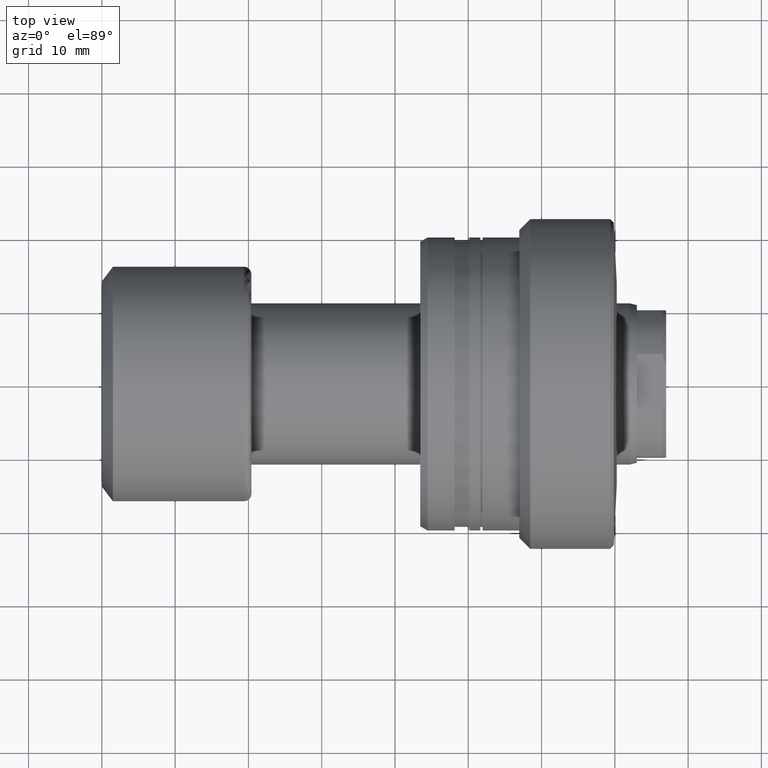
[diagram: clean part render]
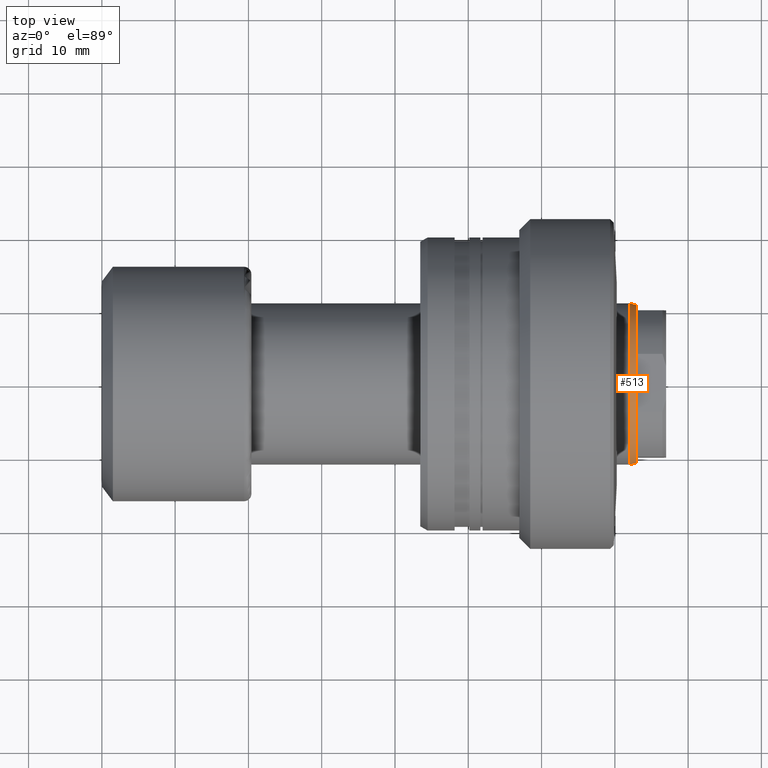
[diagram: same view with one face highlighted and labeled with its STEP entity id]
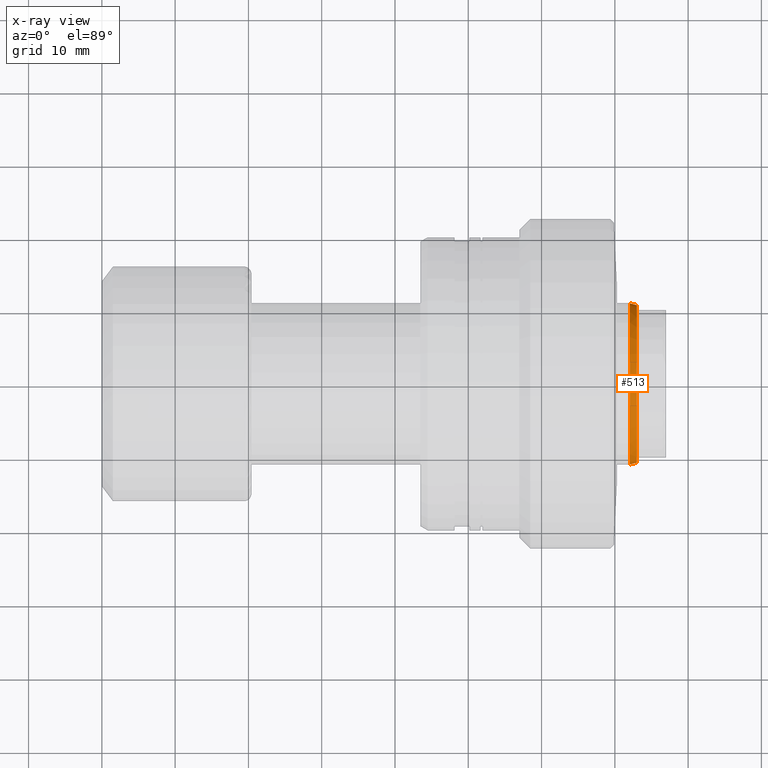
[diagram: x-ray of the same camera — body ghosted, the highlighted face saturated]
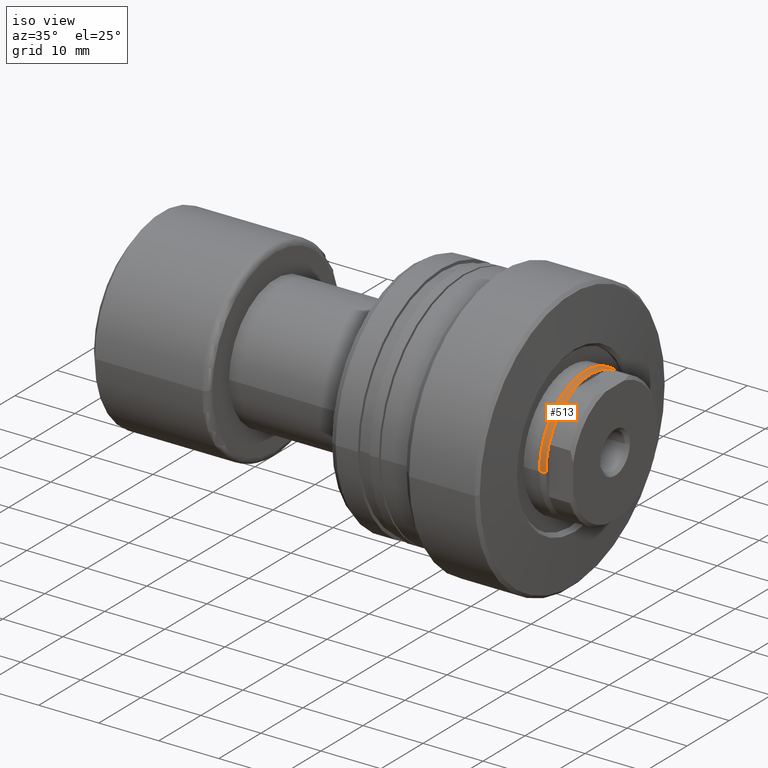
[diagram: same view with one face highlighted and labeled with its STEP entity id]
A machine part, top view. The second image highlights one B-rep face of the part: STEP entity #513.
The next image is the same camera in x-ray: the body ghosted, the highlighted face saturated — about 0% of this face is hidden behind the body in this view.
A second angle (iso view) of the same face is appended — the face is thin or edge-on in the first view.
In plain terms, the highlighted conical surface has half-angle 14.996 deg.
Its self-contained STEP definition (entity closure, byte-faithful):
#58 = CONICAL_SURFACE ( 'NONE', #299, 11.00000000000018829, 0.2617378310289950050 ) ;
#63 = ORIENTED_EDGE ( 'NONE', *, *, #1802, .F. ) ;
#114 = ORIENTED_EDGE ( 'NONE', *, *, #2419, .F. ) ;
#137 = CIRCLE ( 'NONE', #981, 10.75000000000000000 ) ;
#171 = CARTESIAN_POINT ( 'NONE',  ( 73.00000000000015632, 9.999999999999223732, 3.944933459515049368 ) ) ;
#200 = DIRECTION ( 'NONE',  ( 1.678244106991442714E-14, 1.000000000000000000, 0.000000000000000000 ) ) ;
#245 = CIRCLE ( 'NONE', #2284, 10.75000000000046718 ) ;
#255 = EDGE_CURVE ( 'NONE', #646, #429, #137, .T. ) ;
#264 = DIRECTION ( 'NONE',  ( 1.678244106991442714E-14, 1.000000000000000000, 0.000000000000000000 ) ) ;
#292 = VERTEX_POINT ( 'NONE', #2438 ) ;
#299 = AXIS2_PLACEMENT_3D ( 'NONE', #970, #1706, #1869 ) ;
#308 = ORIENTED_EDGE ( 'NONE', *, *, #972, .F. ) ;
#340 = VERTEX_POINT ( 'NONE', #984 ) ;
#407 = ORIENTED_EDGE ( 'NONE', *, *, #1557, .T. ) ;
#429 = VERTEX_POINT ( 'NONE', #707 ) ;
#513 = ADVANCED_FACE ( 'NONE', ( #1714 ), #58, .T. ) ;
#534 = DIRECTION ( 'NONE',  ( -1.000000000000000000, -1.069542322069065801E-17, -0.000000000000000000 ) ) ;
#583 = DIRECTION ( 'NONE',  ( 1.000000000000000000, -1.657264799492230625E-14, 0.000000000000000000 ) ) ;
#585 = DIRECTION ( 'NONE',  ( -1.000000000000000000, -1.069542322069065801E-17, -0.000000000000000000 ) ) ;
#611 = CIRCLE ( 'NONE', #2085, 10.75000000000046718 ) ;
#642 = AXIS2_PLACEMENT_3D ( 'NONE', #2013, #534, #1252 ) ;
#646 = VERTEX_POINT ( 'NONE', #1523 ) ;
#707 = CARTESIAN_POINT ( 'NONE',  ( 72.99999999999992895, -3.944933459516260399, 10.00000000000043343 ) ) ;
#725 = CARTESIAN_POINT ( 'NONE',  ( 72.06675751232378957, 11.00000000000018829, 1.347111479062111676E-15 ) ) ;
#765 = CARTESIAN_POINT ( 'NONE',  ( 72.06675751232378957, 11.00000000000018829, 1.347111479062111479E-15 ) ) ;
#812 = DIRECTION ( 'NONE',  ( 0.000000000000000000, -1.000000000000000000, 0.000000000000000000 ) ) ;
#825 = CARTESIAN_POINT ( 'NONE',  ( 73.00000000000000000, -1.209803303629328489E-12, 0.000000000000000000 ) ) ;
#834 = VECTOR ( 'NONE', #1135, 1000.000000000000114 ) ;
#887 = EDGE_CURVE ( 'NONE', #292, #1095, #1825, .T. ) ;
#907 = VERTEX_POINT ( 'NONE', #725 ) ;
#915 = EDGE_LOOP ( 'NONE', ( #1676, #407, #114, #308, #63, #1164, #2192, #1926 ) ) ;
#931 = CARTESIAN_POINT ( 'NONE',  ( 72.06675751232378957, -11.00000000000018829, 0.000000000000000000 ) ) ;
#970 = CARTESIAN_POINT ( 'NONE',  ( 72.06675751232378957, 7.707844717371907893E-16, 0.000000000000000000 ) ) ;
#972 = EDGE_CURVE ( 'NONE', #340, #1460, #1837, .T. ) ;
#981 = AXIS2_PLACEMENT_3D ( 'NONE', #1143, #585, #812 ) ;
#984 = CARTESIAN_POINT ( 'NONE',  ( 72.99999999999981526, -10.75000000000167866, 0.000000000000000000 ) ) ;
#996 = CIRCLE ( 'NONE', #1547, 11.00000000000018829 ) ;
#1020 = VECTOR ( 'NONE', #2416, 1000.000000000000114 ) ;
#1064 = CARTESIAN_POINT ( 'NONE',  ( 72.06675751232378957, -11.00000000000018829, 0.000000000000000000 ) ) ;
#1095 = VERTEX_POINT ( 'NONE', #171 ) ;
#1135 = DIRECTION ( 'NONE',  ( -0.9659417565234686975, 0.2587595853381199906, 3.168890979330250141E-17 ) ) ;
#1143 = CARTESIAN_POINT ( 'NONE',  ( 73.00000000000014211, 7.807658951104196354E-16, 0.000000000000000000 ) ) ;
#1164 = ORIENTED_EDGE ( 'NONE', *, *, #255, .T. ) ;
#1190 = CARTESIAN_POINT ( 'NONE',  ( 72.06675751232378957, 7.707844717371907893E-16, 0.000000000000000000 ) ) ;
#1252 = DIRECTION ( 'NONE',  ( 0.000000000000000000, -1.000000000000000000, 0.000000000000000000 ) ) ;
#1405 = DIRECTION ( 'NONE',  ( -1.000000000000000000, -1.069542322069065801E-17, -0.000000000000000000 ) ) ;
#1460 = VERTEX_POINT ( 'NONE', #1064 ) ;
#1523 = CARTESIAN_POINT ( 'NONE',  ( 72.99999999999982947, -10.00000000000077627, 3.944933459517253382 ) ) ;
#1547 = AXIS2_PLACEMENT_3D ( 'NONE', #1190, #1405, #2338 ) ;
#1557 = EDGE_CURVE ( 'NONE', #2052, #907, #2430, .T. ) ;
#1605 = DIRECTION ( 'NONE',  ( 1.000000000000000000, -1.657264799492230625E-14, 0.000000000000000000 ) ) ;
#1676 = ORIENTED_EDGE ( 'NONE', *, *, #1925, .F. ) ;
#1706 = DIRECTION ( 'NONE',  ( -1.000000000000000000, -1.069542322069065801E-17, -0.000000000000000000 ) ) ;
#1714 = FACE_OUTER_BOUND ( 'NONE', #915, .T. ) ;
#1720 = DIRECTION ( 'NONE',  ( 1.000000000000000000, -1.657264799492230625E-14, 0.000000000000000000 ) ) ;
#1736 = CIRCLE ( 'NONE', #2236, 10.75000000000046718 ) ;
#1777 = CARTESIAN_POINT ( 'NONE',  ( 73.00000000000000000, -1.209803303629328489E-12, 0.000000000000000000 ) ) ;
#1802 = EDGE_CURVE ( 'NONE', #646, #340, #611, .T. ) ;
#1825 = CIRCLE ( 'NONE', #642, 10.75000000000000000 ) ;
#1837 = LINE ( 'NONE', #931, #1020 ) ;
#1869 = DIRECTION ( 'NONE',  ( 0.000000000000000000, -1.000000000000000000, 0.000000000000000000 ) ) ;
#1925 = EDGE_CURVE ( 'NONE', #2052, #1095, #1736, .T. ) ;
#1926 = ORIENTED_EDGE ( 'NONE', *, *, #887, .T. ) ;
#2013 = CARTESIAN_POINT ( 'NONE',  ( 73.00000000000014211, 7.807658951104196354E-16, 0.000000000000000000 ) ) ;
#2049 = CARTESIAN_POINT ( 'NONE',  ( 73.00000000000000000, -1.209803303629328489E-12, 0.000000000000000000 ) ) ;
#2052 = VERTEX_POINT ( 'NONE', #2064 ) ;
#2064 = CARTESIAN_POINT ( 'NONE',  ( 73.00000000000017053, 10.74999999999925926, 1.331803394072711998E-15 ) ) ;
#2085 = AXIS2_PLACEMENT_3D ( 'NONE', #1777, #1605, #2348 ) ;
#2192 = ORIENTED_EDGE ( 'NONE', *, *, #2263, .F. ) ;
#2236 = AXIS2_PLACEMENT_3D ( 'NONE', #825, #1720, #264 ) ;
#2263 = EDGE_CURVE ( 'NONE', #292, #429, #245, .T. ) ;
#2284 = AXIS2_PLACEMENT_3D ( 'NONE', #2049, #583, #200 ) ;
#2338 = DIRECTION ( 'NONE',  ( 0.000000000000000000, -1.000000000000000000, 0.000000000000000000 ) ) ;
#2348 = DIRECTION ( 'NONE',  ( 1.678244106991442714E-14, 1.000000000000000000, 0.000000000000000000 ) ) ;
#2416 = DIRECTION ( 'NONE',  ( -0.9659417565234686975, -0.2587595853381199906, 0.000000000000000000 ) ) ;
#2419 = EDGE_CURVE ( 'NONE', #1460, #907, #996, .T. ) ;
#2430 = LINE ( 'NONE', #765, #834 ) ;
#2438 = CARTESIAN_POINT ( 'NONE',  ( 73.00000000000007105, 3.944933459516047236, 9.999999999999563016 ) ) ;